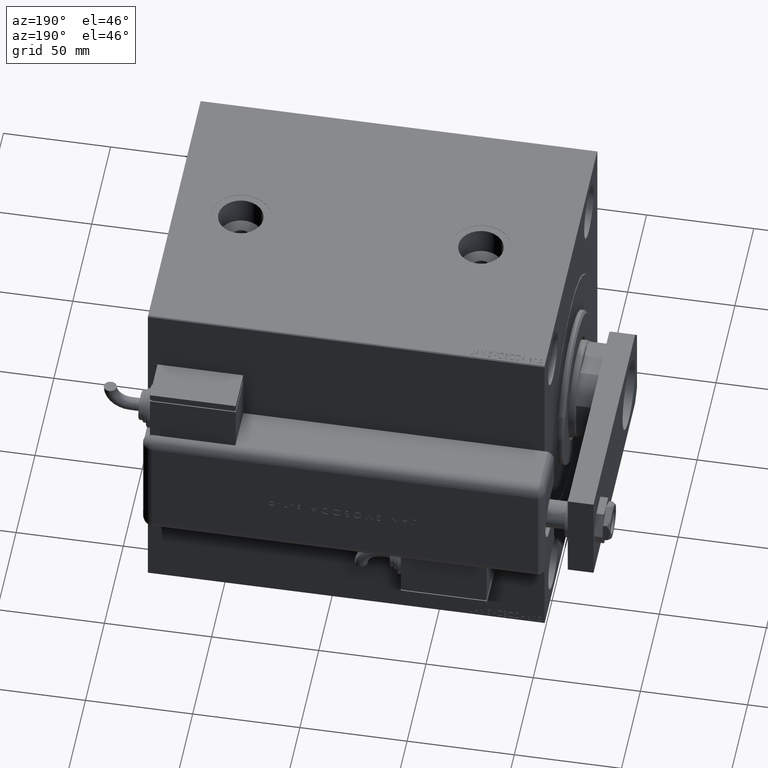
[diagram: clean part render]
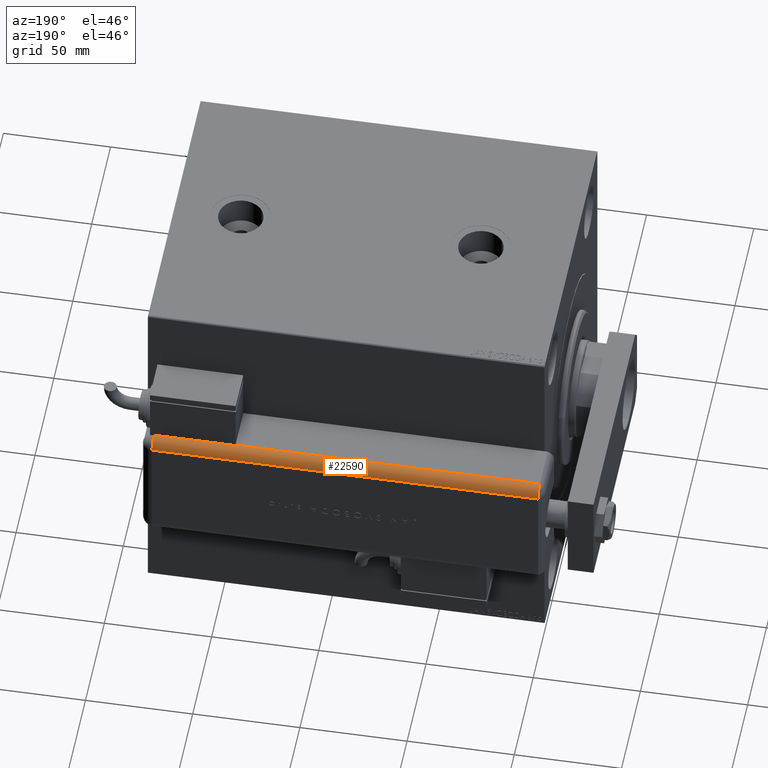
[diagram: same view with one face highlighted and labeled with its STEP entity id]
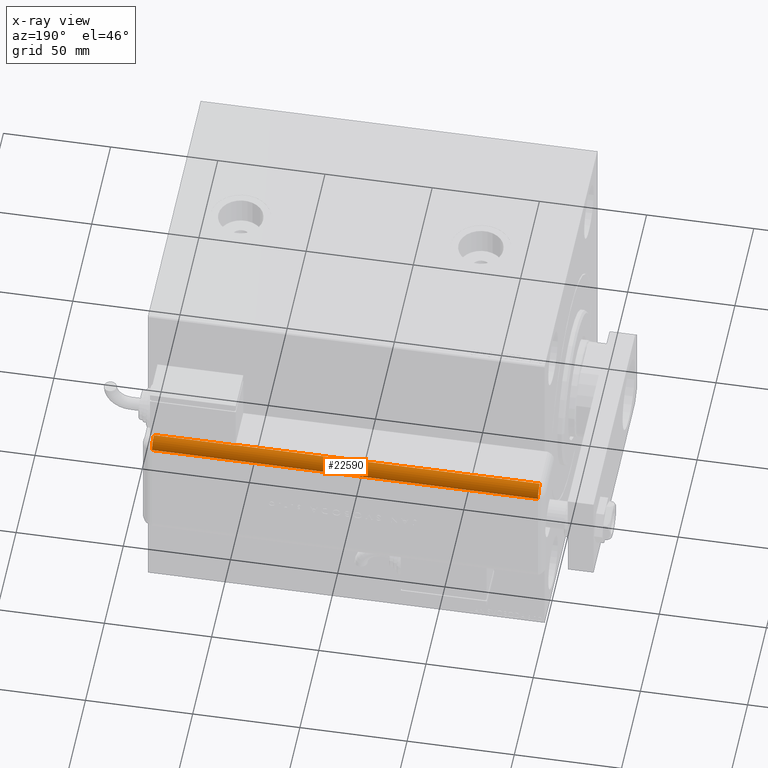
[diagram: x-ray of the same camera — body ghosted, the highlighted face saturated]
A machine part, auxiliary view. The second image highlights one B-rep face of the part: STEP entity #22590.
The next image is the same camera in x-ray: the body ghosted, the highlighted face saturated — about 0% of this face is hidden behind the body in this view.
In plain terms, the highlighted cylindrical surface (edge-blend (fillet) strip) has radius 5 mm, axis along (1, -0, -0).
Its self-contained STEP definition (entity closure, byte-faithful):
#1903 = VECTOR ( 'NONE', #17478, 1000.000000000000000 ) ;
#2119 = EDGE_LOOP ( 'NONE', ( #24159, #34357, #37732, #2750, #8426, #58371 ) ) ;
#2730 = CARTESIAN_POINT ( 'NONE',  ( 23.99999999999999289, 20.79999999999998295, 185.0000000000000000 ) ) ;
#2750 = ORIENTED_EDGE ( 'NONE', *, *, #25311, .F. ) ;
#4031 = EDGE_CURVE ( 'NONE', #7836, #26644, #53491, .T. ) ;
#5150 = CIRCLE ( 'NONE', #12896, 5.000000000000000888 ) ;
#5361 = CARTESIAN_POINT ( 'NONE',  ( 28.99599839871871154, 21.00000000000000000, 5.000000000000004441 ) ) ;
#5751 = DIRECTION ( 'NONE',  ( 0.000000000000000000, 0.000000000000000000, -1.000000000000000000 ) ) ;
#7410 = CARTESIAN_POINT ( 'NONE',  ( 23.99999999999999289, 20.79999999999998295, 42.99999999999998579 ) ) ;
#7836 = VERTEX_POINT ( 'NONE', #11088 ) ;
#8426 = ORIENTED_EDGE ( 'NONE', *, *, #52637, .F. ) ;
#9159 = CIRCLE ( 'NONE', #21722, 5.000000000000000888 ) ;
#10630 = CARTESIAN_POINT ( 'NONE',  ( 23.99999999999999289, 20.79999999999998295, 185.0000000000000000 ) ) ;
#11088 = CARTESIAN_POINT ( 'NONE',  ( 28.99999999999999645, 20.79999999999998295, 43.00000000000000000 ) ) ;
#11185 = CARTESIAN_POINT ( 'NONE',  ( 23.99999999999999289, 25.79999999999998295, 185.0000000000000000 ) ) ;
#11268 = VECTOR ( 'NONE', #34744, 1000.000000000000000 ) ;
#12896 = AXIS2_PLACEMENT_3D ( 'NONE', #44275, #58199, #38568 ) ;
#13459 = CIRCLE ( 'NONE', #26049, 5.000000000000000888 ) ;
#14567 = FACE_OUTER_BOUND ( 'NONE', #2119, .T. ) ;
#15718 = CARTESIAN_POINT ( 'NONE',  ( 23.99999999999999289, 25.79999999999998295, 5.000000000000004441 ) ) ;
#17478 = DIRECTION ( 'NONE',  ( -0.000000000000000000, -0.000000000000000000, 1.000000000000000000 ) ) ;
#18433 = VERTEX_POINT ( 'NONE', #15718 ) ;
#20698 = VECTOR ( 'NONE', #5751, 1000.000000000000000 ) ;
#21722 = AXIS2_PLACEMENT_3D ( 'NONE', #2730, #43627, #39958 ) ;
#22590 = ADVANCED_FACE ( 'NONE', ( #14567 ), #31916, .T. ) ;
#24159 = ORIENTED_EDGE ( 'NONE', *, *, #39872, .F. ) ;
#25293 = VERTEX_POINT ( 'NONE', #11185 ) ;
#25311 = EDGE_CURVE ( 'NONE', #25293, #18433, #38453, .T. ) ;
#25668 = CARTESIAN_POINT ( 'NONE',  ( 28.99999999999999645, 20.79999999999998295, 185.0000000000000000 ) ) ;
#26049 = AXIS2_PLACEMENT_3D ( 'NONE', #7410, #48318, #58568 ) ;
#26644 = VERTEX_POINT ( 'NONE', #47548 ) ;
#29099 = DIRECTION ( 'NONE',  ( 0.000000000000000000, 0.000000000000000000, -1.000000000000000000 ) ) ;
#31916 = CYLINDRICAL_SURFACE ( 'NONE', #41994, 5.000000000000000888 ) ;
#34357 = ORIENTED_EDGE ( 'NONE', *, *, #40909, .F. ) ;
#34744 = DIRECTION ( 'NONE',  ( -0.000000000000000000, -0.000000000000000000, 1.000000000000000000 ) ) ;
#35849 = CARTESIAN_POINT ( 'NONE',  ( 28.99599839871871154, 20.99999999999999289, 43.00000000000000000 ) ) ;
#37732 = ORIENTED_EDGE ( 'NONE', *, *, #49285, .T. ) ;
#38453 = LINE ( 'NONE', #47236, #20698 ) ;
#38568 = DIRECTION ( 'NONE',  ( -1.000000000000000000, 0.000000000000000000, 0.000000000000000000 ) ) ;
#39872 = EDGE_CURVE ( 'NONE', #47238, #7836, #13459, .T. ) ;
#39958 = DIRECTION ( 'NONE',  ( -1.000000000000000000, 0.000000000000000000, 0.000000000000000000 ) ) ;
#40909 = EDGE_CURVE ( 'NONE', #55851, #47238, #58958, .T. ) ;
#41994 = AXIS2_PLACEMENT_3D ( 'NONE', #10630, #29099, #51502 ) ;
#43627 = DIRECTION ( 'NONE',  ( -0.000000000000000000, -0.000000000000000000, 1.000000000000000000 ) ) ;
#44275 = CARTESIAN_POINT ( 'NONE',  ( 23.99999999999999289, 20.79999999999998295, 5.000000000000004441 ) ) ;
#47236 = CARTESIAN_POINT ( 'NONE',  ( 23.99999999999999289, 25.79999999999998295, 185.0000000000000000 ) ) ;
#47238 = VERTEX_POINT ( 'NONE', #35849 ) ;
#47548 = CARTESIAN_POINT ( 'NONE',  ( 28.99999999999999645, 20.79999999999998295, 185.0000000000000000 ) ) ;
#48318 = DIRECTION ( 'NONE',  ( -0.000000000000000000, 0.000000000000000000, -1.000000000000000000 ) ) ;
#49285 = EDGE_CURVE ( 'NONE', #55851, #18433, #5150, .T. ) ;
#49286 = CARTESIAN_POINT ( 'NONE',  ( 28.99599839871871154, 20.99999999999997158, 185.0000000000000000 ) ) ;
#51502 = DIRECTION ( 'NONE',  ( -1.000000000000000000, 0.000000000000000000, 0.000000000000000000 ) ) ;
#52637 = EDGE_CURVE ( 'NONE', #26644, #25293, #9159, .T. ) ;
#53491 = LINE ( 'NONE', #25668, #11268 ) ;
#55851 = VERTEX_POINT ( 'NONE', #5361 ) ;
#58199 = DIRECTION ( 'NONE',  ( -0.000000000000000000, -0.000000000000000000, 1.000000000000000000 ) ) ;
#58371 = ORIENTED_EDGE ( 'NONE', *, *, #4031, .F. ) ;
#58568 = DIRECTION ( 'NONE',  ( 1.000000000000000000, -6.383782391594648845E-14, 0.000000000000000000 ) ) ;
#58958 = LINE ( 'NONE', #49286, #1903 ) ;